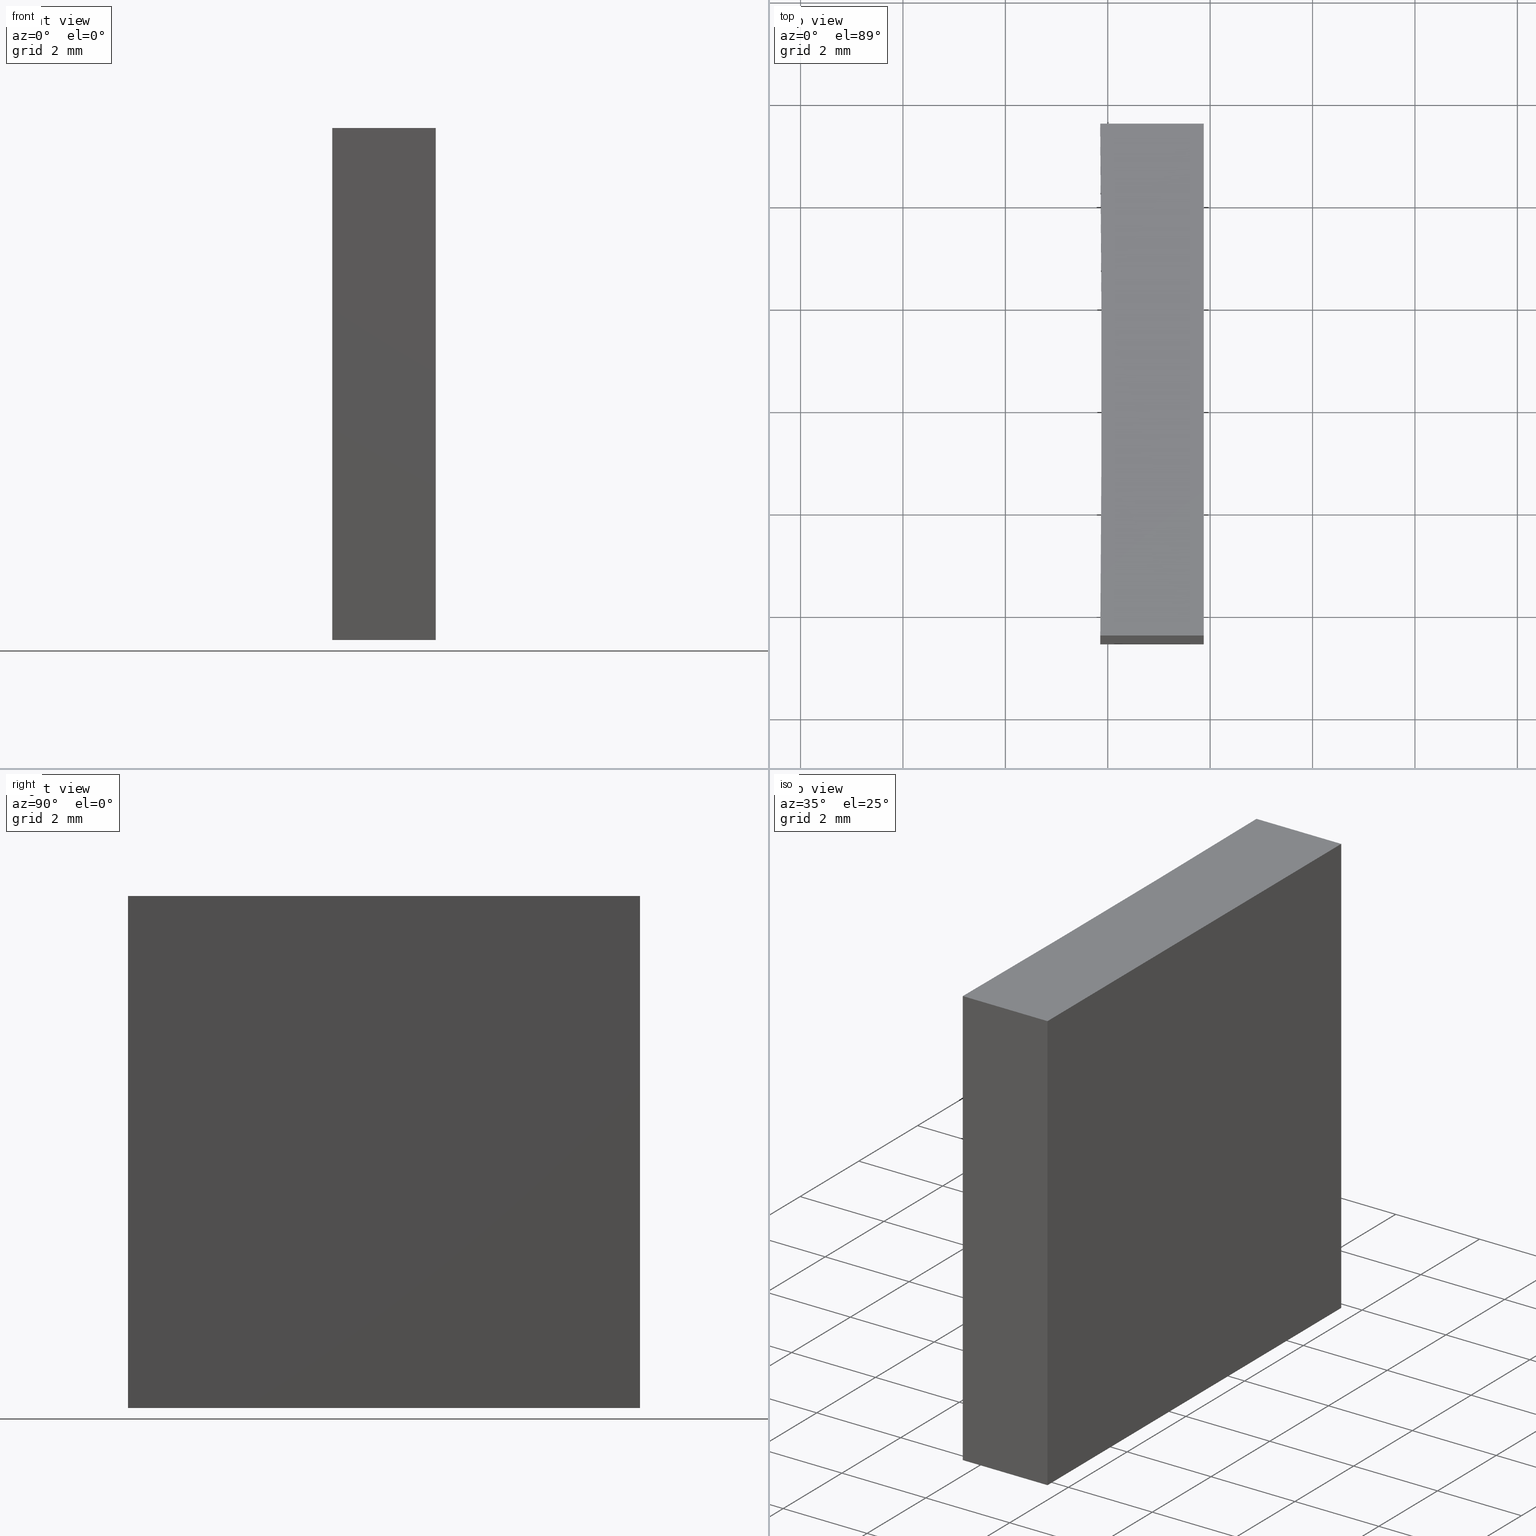
[diagram: canonical four-view strip — front | top / right | iso, engineering-drawing reading convention]
A machine part, canonical four-view strip (front | top / right | iso — engineering-drawing reading convention). The complete STEP part file that produces these views, byte-faithful:
ISO-10303-21;
HEADER;
FILE_DESCRIPTION (( 'STEP AP203' ),
    '1' );
FILE_NAME ('155574.STEP',
    '2024-05-13T06:31:25',
    ( '' ),
    ( '' ),
    'SwSTEP 2.0',
    'SolidWorks 2020',
    '' );
FILE_SCHEMA (( 'CONFIG_CONTROL_DESIGN' ));
ENDSEC;

DATA;
#1 = ORIENTED_EDGE ( 'NONE', *, *, #107, .T. ) ;
#2 = COORDINATED_UNIVERSAL_TIME_OFFSET ( 8, 0, .AHEAD. ) ;
#3 = CARTESIAN_POINT ( 'NONE',  ( 433.8743084995878121, -114.5310099826064487, 0.000000000000000000 ) ) ;
#4 = AXIS2_PLACEMENT_3D ( 'NONE', #60, #9, #141 ) ;
#5 = CARTESIAN_POINT ( 'NONE',  ( 431.8543084995877166, -124.5310099826064203, 10.00000000000000000 ) ) ;
#6 = LINE ( 'NONE', #158, #140 ) ;
#7 = DIRECTION ( 'NONE',  ( 1.000000000000000000, 0.000000000000000000, -0.000000000000000000 ) ) ;
#8 = CC_DESIGN_PERSON_AND_ORGANIZATION_ASSIGNMENT ( #12, #84, ( #187 ) ) ;
#9 = DIRECTION ( 'NONE',  ( 0.000000000000000000, 0.000000000000000000, 1.000000000000000000 ) ) ;
#10 = PERSON_AND_ORGANIZATION ( #155, #181 ) ;
#11 = ADVANCED_BREP_SHAPE_REPRESENTATION ( '155574', ( #198, #186 ), #151 ) ;
#12 = PERSON_AND_ORGANIZATION ( #155, #181 ) ;
#13 = CC_DESIGN_SECURITY_CLASSIFICATION ( #119, ( #136 ) ) ;
#14 = AXIS2_PLACEMENT_3D ( 'NONE', #81, #229, #123 ) ;
#15 = ADVANCED_FACE ( 'NONE', ( #76 ), #154, .F. ) ;
#16 = ORIENTED_EDGE ( 'NONE', *, *, #152, .T. ) ;
#17 = ADVANCED_FACE ( 'NONE', ( #209 ), #44, .F. ) ;
#18 = ORIENTED_EDGE ( 'NONE', *, *, #176, .F. ) ;
#19 = ORIENTED_EDGE ( 'NONE', *, *, #124, .T. ) ;
#20 = LINE ( 'NONE', #77, #131 ) ;
#21 = DIRECTION ( 'NONE',  ( -1.000000000000000000, 0.000000000000000000, 0.000000000000000000 ) ) ;
#22 = CARTESIAN_POINT ( 'NONE',  ( 431.8543084995877166, -114.5310099826064345, 10.00000000000000000 ) ) ;
#23 = DIRECTION ( 'NONE',  ( 0.000000000000000000, 0.000000000000000000, 1.000000000000000000 ) ) ;
#24 = PLANE ( 'NONE',  #146 ) ;
#25 = PERSON_AND_ORGANIZATION_ROLE ( 'design_supplier' ) ;
#26 = PERSON_AND_ORGANIZATION_ROLE ( 'design_owner' ) ;
#27 = DATE_TIME_ROLE ( 'classification_date' ) ;
#28 = APPROVAL_ROLE ( '' ) ;
#29 = AXIS2_PLACEMENT_3D ( 'NONE', #192, #23, #7 ) ;
#30 = CALENDAR_DATE ( 2024, 13, 5 ) ;
#31 = ORIENTED_EDGE ( 'NONE', *, *, #124, .F. ) ;
#32 = VECTOR ( 'NONE', #207, 1000.000000000000000 ) ;
#33 = EDGE_LOOP ( 'NONE', ( #183, #97, #130, #112 ) ) ;
#34 = EDGE_CURVE ( 'NONE', #116, #55, #138, .T. ) ;
#35 = ORIENTED_EDGE ( 'NONE', *, *, #220, .F. ) ;
#36 = ORIENTED_EDGE ( 'NONE', *, *, #220, .T. ) ;
#37 = ORIENTED_EDGE ( 'NONE', *, *, #91, .T. ) ;
#38 = DIRECTION ( 'NONE',  ( -1.000000000000000000, 6.870191984066299653E-15, -0.000000000000000000 ) ) ;
#39 = CC_DESIGN_PERSON_AND_ORGANIZATION_ASSIGNMENT ( #219, #26, ( #93 ) ) ;
#40 = FACE_OUTER_BOUND ( 'NONE', #185, .T. ) ;
#41 = CARTESIAN_POINT ( 'NONE',  ( 431.8543084995877166, -114.5310099826064345, 10.00000000000000000 ) ) ;
#42 = AXIS2_PLACEMENT_3D ( 'NONE', #225, #227, #79 ) ;
#43 = LINE ( 'NONE', #99, #127 ) ;
#44 = PLANE ( 'NONE',  #4 ) ;
#45 = PERSON_AND_ORGANIZATION ( #155, #181 ) ;
#46 = CARTESIAN_POINT ( 'NONE',  ( 431.8543084995877166, -114.5310099826064345, 10.00000000000000000 ) ) ;
#47 = CARTESIAN_POINT ( 'NONE',  ( 433.8743084995877553, -124.5310099826064203, 0.000000000000000000 ) ) ;
#48 = APPROVAL_STATUS ( 'not_yet_approved' ) ;
#49 = VECTOR ( 'NONE', #174, 1000.000000000000000 ) ;
#50 = APPROVAL ( #48, 'δָ��' ) ;
#51 = APPROVAL_ROLE ( '' ) ;
#52 = ORIENTED_EDGE ( 'NONE', *, *, #62, .F. ) ;
#53 = CC_DESIGN_APPROVAL ( #196, ( #187 ) ) ;
#54 = VECTOR ( 'NONE', #38, 1000.000000000000000 ) ;
#55 = VERTEX_POINT ( 'NONE', #211 ) ;
#56 = ORIENTED_EDGE ( 'NONE', *, *, #111, .T. ) ;
#57 = VERTEX_POINT ( 'NONE', #3 ) ;
#58 = DIRECTION ( 'NONE',  ( 1.000000000000000000, -6.870191984066300442E-15, 0.000000000000000000 ) ) ;
#59 = CC_DESIGN_PERSON_AND_ORGANIZATION_ASSIGNMENT ( #10, #67, ( #119 ) ) ;
#60 = CARTESIAN_POINT ( 'NONE',  ( -84.92150362787631934, -119.5310099826064345, 0.000000000000000000 ) ) ;
#61 = FACE_OUTER_BOUND ( 'NONE', #94, .T. ) ;
#62 = EDGE_CURVE ( 'NONE', #74, #116, #120, .T. ) ;
#63 = CARTESIAN_POINT ( 'NONE',  ( 431.8543084995877166, -124.5310099826064203, 10.00000000000000000 ) ) ;
#64 = VECTOR ( 'NONE', #143, 1000.000000000000000 ) ;
#65 = CARTESIAN_POINT ( 'NONE',  ( -84.92150362787631934, -119.5310099826064345, 10.00000000000000000 ) ) ;
#66 = MECHANICAL_CONTEXT ( 'NONE', #68, 'mechanical' ) ;
#67 = PERSON_AND_ORGANIZATION_ROLE ( 'classification_officer' ) ;
#68 = APPLICATION_CONTEXT ( 'configuration controlled 3d designs of mechanical parts and assemblies' ) ;
#69 = APPROVAL_STATUS ( 'not_yet_approved' ) ;
#70 = PERSON_AND_ORGANIZATION ( #155, #181 ) ;
#71 = PERSON_AND_ORGANIZATION ( #155, #181 ) ;
#72 = EDGE_LOOP ( 'NONE', ( #1, #35, #18, #167 ) ) ;
#73 = LOCAL_TIME ( 14, 31, 25.00000000000000000, #2 ) ;
#74 = VERTEX_POINT ( 'NONE', #22 ) ;
#75 = PRODUCT_RELATED_PRODUCT_CATEGORY ( 'detail', '', ( #93 ) ) ;
#76 = FACE_OUTER_BOUND ( 'NONE', #72, .T. ) ;
#77 = CARTESIAN_POINT ( 'NONE',  ( 433.8743084995878121, -114.5310099826064487, 10.00000000000000000 ) ) ;
#78 = DIRECTION ( 'NONE',  ( 5.551115123125792957E-15, 1.000000000000000000, -0.000000000000000000 ) ) ;
#79 = DIRECTION ( 'NONE',  ( 0.000000000000000000, -0.000000000000000000, 1.000000000000000000 ) ) ;
#80 = DIRECTION ( 'NONE',  ( 1.000000000000000000, 0.000000000000000000, 0.000000000000000000 ) ) ;
#81 = CARTESIAN_POINT ( 'NONE',  ( -84.92150362787631934, -119.5310099826064345, 0.000000000000000000 ) ) ;
#82 = DATE_TIME_ROLE ( 'creation_date' ) ;
#83 = APPROVAL ( #168, 'δָ��' ) ;
#84 = PERSON_AND_ORGANIZATION_ROLE ( 'creator' ) ;
#85 = DIRECTION ( 'NONE',  ( 0.000000000000000000, 0.000000000000000000, 1.000000000000000000 ) ) ;
#86 = CC_DESIGN_APPROVAL ( #50, ( #136 ) ) ;
#87 = CLOSED_SHELL ( 'NONE', ( #150, #15, #171, #134, #215, #17 ) ) ;
#88 = CALENDAR_DATE ( 2024, 13, 5 ) ;
#89 = UNCERTAINTY_MEASURE_WITH_UNIT (LENGTH_MEASURE( 1.000000000000000082E-05 ), #214, 'distance_accuracy_value', 'NONE');
#90 = CALENDAR_DATE ( 2024, 13, 5 ) ;
#91 = EDGE_CURVE ( 'NONE', #205, #74, #117, .T. ) ;
#92 = APPROVAL_PERSON_ORGANIZATION ( #70, #50, #103 ) ;
#93 = PRODUCT ( '155574', '155574', '', ( #66 ) ) ;
#94 = EDGE_LOOP ( 'NONE', ( #16, #135, #184, #223 ) ) ;
#95 = CC_DESIGN_APPROVAL ( #83, ( #119 ) ) ;
#96 = VECTOR ( 'NONE', #102, 1000.000000000000000 ) ;
#97 = ORIENTED_EDGE ( 'NONE', *, *, #152, .F. ) ;
#98 = EDGE_LOOP ( 'NONE', ( #169, #114, #31, #36 ) ) ;
#99 = CARTESIAN_POINT ( 'NONE',  ( 431.8543084995877166, -114.5310099826064345, 0.000000000000000000 ) ) ;
#100 = DIRECTION ( 'NONE',  ( -5.551115123125792168E-15, -1.000000000000000000, 0.000000000000000000 ) ) ;
#101 = CARTESIAN_POINT ( 'NONE',  ( 433.8743084995878121, -114.5310099826064487, 10.00000000000000000 ) ) ;
#102 = DIRECTION ( 'NONE',  ( 1.000000000000000000, 0.000000000000000000, 0.000000000000000000 ) ) ;
#103 = APPROVAL_ROLE ( '' ) ;
#104 = CC_DESIGN_DATE_AND_TIME_ASSIGNMENT ( #125, #82, ( #187 ) ) ;
#105 = CARTESIAN_POINT ( 'NONE',  ( 0.000000000000000000, 0.000000000000000000, 0.000000000000000000 ) ) ;
#106 = APPROVAL_DATE_TIME ( #197, #196 ) ;
#107 = EDGE_CURVE ( 'NONE', #55, #224, #190, .T. ) ;
#108 = VECTOR ( 'NONE', #188, 1000.000000000000000 ) ;
#109 = ORIENTED_EDGE ( 'NONE', *, *, #236, .T. ) ;
#110 = APPROVAL_PERSON_ORGANIZATION ( #148, #196, #28 ) ;
#111 = EDGE_CURVE ( 'NONE', #132, #55, #202, .T. ) ;
#112 = ORIENTED_EDGE ( 'NONE', *, *, #107, .F. ) ;
#113 = ORIENTED_EDGE ( 'NONE', *, *, #34, .F. ) ;
#114 = ORIENTED_EDGE ( 'NONE', *, *, #191, .F. ) ;
#115 = CALENDAR_DATE ( 2024, 13, 5 ) ;
#116 = VERTEX_POINT ( 'NONE', #5 ) ;
#117 = LINE ( 'NONE', #213, #54 ) ;
#118 = DIRECTION ( 'NONE',  ( -0.000000000000000000, -0.000000000000000000, -1.000000000000000000 ) ) ;
#119 = SECURITY_CLASSIFICATION ( '', '', #179 ) ;
#120 = CIRCLE ( 'NONE', #234, 516.8000000000000682 ) ;
#121 = DIRECTION ( 'NONE',  ( -1.000000000000000000, 5.551115123125792168E-15, 0.000000000000000000 ) ) ;
#122 = FACE_OUTER_BOUND ( 'NONE', #203, .T. ) ;
#123 = DIRECTION ( 'NONE',  ( 1.000000000000000000, 0.000000000000000000, 0.000000000000000000 ) ) ;
#124 = EDGE_CURVE ( 'NONE', #239, #205, #20, .T. ) ;
#125 = DATE_AND_TIME ( #88, #216 ) ;
#126 = CARTESIAN_POINT ( 'NONE',  ( 433.8743084995877553, -124.5310099826064203, 10.00000000000000000 ) ) ;
#127 = VECTOR ( 'NONE', #228, 1000.000000000000000 ) ;
#128 = COORDINATED_UNIVERSAL_TIME_OFFSET ( 8, 0, .AHEAD. ) ;
#129 = CC_DESIGN_PERSON_AND_ORGANIZATION_ASSIGNMENT ( #45, #25, ( #136 ) ) ;
#130 = ORIENTED_EDGE ( 'NONE', *, *, #231, .F. ) ;
#131 = VECTOR ( 'NONE', #78, 1000.000000000000000 ) ;
#132 = VERTEX_POINT ( 'NONE', #157 ) ;
#133 = APPROVAL_DATE_TIME ( #238, #83 ) ;
#134 = ADVANCED_FACE ( 'NONE', ( #61 ), #193, .F. ) ;
#135 = ORIENTED_EDGE ( 'NONE', *, *, #236, .F. ) ;
#136 = PRODUCT_DEFINITION_FORMATION_WITH_SPECIFIED_SOURCE ( '�κ�', '', #93, .NOT_KNOWN. ) ;
#137 = DIRECTION ( 'NONE',  ( -0.000000000000000000, -0.000000000000000000, -1.000000000000000000 ) ) ;
#138 = LINE ( 'NONE', #63, #49 ) ;
#139 = FACE_OUTER_BOUND ( 'NONE', #98, .T. ) ;
#140 = VECTOR ( 'NONE', #137, 1000.000000000000000 ) ;
#141 = DIRECTION ( 'NONE',  ( 1.000000000000000000, 0.000000000000000000, -0.000000000000000000 ) ) ;
#142 = DIRECTION ( 'NONE',  ( -6.870191984066300442E-15, -1.000000000000000000, 0.000000000000000000 ) ) ;
#143 = DIRECTION ( 'NONE',  ( -0.000000000000000000, -0.000000000000000000, -1.000000000000000000 ) ) ;
#144 = CALENDAR_DATE ( 2024, 13, 5 ) ;
#145 = LINE ( 'NONE', #46, #64 ) ;
#146 = AXIS2_PLACEMENT_3D ( 'NONE', #101, #121, #100 ) ;
#147 = APPLICATION_PROTOCOL_DEFINITION ( 'international standard', 'config_control_design', 1994, #170 ) ;
#148 = PERSON_AND_ORGANIZATION ( #155, #181 ) ;
#149 = DESIGN_CONTEXT ( 'detailed design', #170, 'design' ) ;
#150 = ADVANCED_FACE ( 'NONE', ( #40 ), #189, .F. ) ;
#151 =( GEOMETRIC_REPRESENTATION_CONTEXT ( 3 ) GLOBAL_UNCERTAINTY_ASSIGNED_CONTEXT ( ( #89 ) ) GLOBAL_UNIT_ASSIGNED_CONTEXT ( ( #214, #161, #232 ) ) REPRESENTATION_CONTEXT ( 'NONE', 'WORKASPACE' ) );
#152 = EDGE_CURVE ( 'NONE', #57, #132, #43, .T. ) ;
#153 = ORIENTED_EDGE ( 'NONE', *, *, #62, .T. ) ;
#154 = PLANE ( 'NONE',  #42 ) ;
#155 = PERSON ( 'δָ��', 'δָ��', 'δָ��', ('δָ��'), ('δָ��'), ('δָ��') ) ;
#156 = DIRECTION ( 'NONE',  ( -0.000000000000000000, -0.000000000000000000, -1.000000000000000000 ) ) ;
#157 = CARTESIAN_POINT ( 'NONE',  ( 431.8543084995877166, -114.5310099826064345, 0.000000000000000000 ) ) ;
#158 = CARTESIAN_POINT ( 'NONE',  ( 433.8743084995878121, -114.5310099826064487, 10.00000000000000000 ) ) ;
#159 = PLANE ( 'NONE',  #29 ) ;
#160 = CARTESIAN_POINT ( 'NONE',  ( 433.8743084995877553, -124.5310099826064203, 10.00000000000000000 ) ) ;
#161 =( NAMED_UNIT ( * ) PLANE_ANGLE_UNIT ( ) SI_UNIT ( $, .RADIAN. ) );
#162 = DIRECTION ( 'NONE',  ( 1.000000000000000000, 0.000000000000000000, 0.000000000000000000 ) ) ;
#163 = LOCAL_TIME ( 14, 31, 25.00000000000000000, #182 ) ;
#164 = DATE_AND_TIME ( #30, #217 ) ;
#165 = CC_DESIGN_DATE_AND_TIME_ASSIGNMENT ( #195, #27, ( #119 ) ) ;
#166 = SHAPE_DEFINITION_REPRESENTATION ( #212, #11 ) ;
#167 = ORIENTED_EDGE ( 'NONE', *, *, #34, .T. ) ;
#168 = APPROVAL_STATUS ( 'not_yet_approved' ) ;
#169 = ORIENTED_EDGE ( 'NONE', *, *, #231, .T. ) ;
#170 = APPLICATION_CONTEXT ( 'configuration controlled 3d designs of mechanical parts and assemblies' ) ;
#171 = ADVANCED_FACE ( 'NONE', ( #139 ), #24, .F. ) ;
#172 = CARTESIAN_POINT ( 'NONE',  ( -84.92150362787631934, -119.5310099826064345, 10.00000000000000000 ) ) ;
#173 = AXIS2_PLACEMENT_3D ( 'NONE', #65, #118, #21 ) ;
#174 = DIRECTION ( 'NONE',  ( -0.000000000000000000, -0.000000000000000000, -1.000000000000000000 ) ) ;
#175 = CARTESIAN_POINT ( 'NONE',  ( 431.8543084995877166, -124.5310099826064203, 10.00000000000000000 ) ) ;
#176 = EDGE_CURVE ( 'NONE', #116, #239, #177, .T. ) ;
#177 = LINE ( 'NONE', #175, #96 ) ;
#178 = LINE ( 'NONE', #160, #32 ) ;
#179 = SECURITY_CLASSIFICATION_LEVEL ( 'unclassified' ) ;
#180 = CARTESIAN_POINT ( 'NONE',  ( 433.8743084995878121, -114.5310099826064487, 0.000000000000000000 ) ) ;
#181 = ORGANIZATION ( 'δָ��', 'δָ��', '' ) ;
#182 = COORDINATED_UNIVERSAL_TIME_OFFSET ( 8, 0, .AHEAD. ) ;
#183 = ORIENTED_EDGE ( 'NONE', *, *, #111, .F. ) ;
#184 = ORIENTED_EDGE ( 'NONE', *, *, #91, .F. ) ;
#185 = EDGE_LOOP ( 'NONE', ( #56, #113, #52, #109 ) ) ;
#186 = AXIS2_PLACEMENT_3D ( 'NONE', #105, #85, #162 ) ;
#187 = PRODUCT_DEFINITION ( 'δ֪', '', #136, #149 ) ;
#188 = DIRECTION ( 'NONE',  ( 1.000000000000000000, 0.000000000000000000, 0.000000000000000000 ) ) ;
#189 = CYLINDRICAL_SURFACE ( 'NONE', #173, 516.8000000000000682 ) ;
#190 = LINE ( 'NONE', #208, #108 ) ;
#191 = EDGE_CURVE ( 'NONE', #205, #57, #6, .T. ) ;
#192 = CARTESIAN_POINT ( 'NONE',  ( -84.92150362787631934, -119.5310099826064345, 10.00000000000000000 ) ) ;
#193 = PLANE ( 'NONE',  #210 ) ;
#194 = PERSON_AND_ORGANIZATION_ROLE ( 'creator' ) ;
#195 = DATE_AND_TIME ( #144, #201 ) ;
#196 = APPROVAL ( #69, 'δָ��' ) ;
#197 = DATE_AND_TIME ( #90, #163 ) ;
#198 = MANIFOLD_SOLID_BREP ( '͹̨-����1', #87 ) ;
#199 = VECTOR ( 'NONE', #218, 1000.000000000000000 ) ;
#200 = LINE ( 'NONE', #180, #199 ) ;
#201 = LOCAL_TIME ( 14, 31, 25.00000000000000000, #233 ) ;
#202 = CIRCLE ( 'NONE', #14, 516.8000000000000682 ) ;
#203 = EDGE_LOOP ( 'NONE', ( #153, #204, #19, #37 ) ) ;
#204 = ORIENTED_EDGE ( 'NONE', *, *, #176, .T. ) ;
#205 = VERTEX_POINT ( 'NONE', #230 ) ;
#206 = CC_DESIGN_PERSON_AND_ORGANIZATION_ASSIGNMENT ( #71, #194, ( #136 ) ) ;
#207 = DIRECTION ( 'NONE',  ( -0.000000000000000000, -0.000000000000000000, -1.000000000000000000 ) ) ;
#208 = CARTESIAN_POINT ( 'NONE',  ( 431.8543084995877166, -124.5310099826064203, 0.000000000000000000 ) ) ;
#209 = FACE_OUTER_BOUND ( 'NONE', #33, .T. ) ;
#210 = AXIS2_PLACEMENT_3D ( 'NONE', #41, #142, #58 ) ;
#211 = CARTESIAN_POINT ( 'NONE',  ( 431.8543084995877166, -124.5310099826064203, 0.000000000000000000 ) ) ;
#212 = PRODUCT_DEFINITION_SHAPE ( 'NONE', 'NONE',  #187 ) ;
#213 = CARTESIAN_POINT ( 'NONE',  ( 431.8543084995877166, -114.5310099826064345, 10.00000000000000000 ) ) ;
#214 =( LENGTH_UNIT ( ) NAMED_UNIT ( * ) SI_UNIT ( .MILLI., .METRE. ) );
#215 = ADVANCED_FACE ( 'NONE', ( #122 ), #159, .T. ) ;
#216 = LOCAL_TIME ( 14, 31, 25.00000000000000000, #221 ) ;
#217 = LOCAL_TIME ( 14, 31, 25.00000000000000000, #128 ) ;
#218 = DIRECTION ( 'NONE',  ( 5.551115123125792957E-15, 1.000000000000000000, -0.000000000000000000 ) ) ;
#219 = PERSON_AND_ORGANIZATION ( #155, #181 ) ;
#220 = EDGE_CURVE ( 'NONE', #239, #224, #178, .T. ) ;
#221 = COORDINATED_UNIVERSAL_TIME_OFFSET ( 8, 0, .AHEAD. ) ;
#222 = PERSON_AND_ORGANIZATION ( #155, #181 ) ;
#223 = ORIENTED_EDGE ( 'NONE', *, *, #191, .T. ) ;
#224 = VERTEX_POINT ( 'NONE', #47 ) ;
#225 = CARTESIAN_POINT ( 'NONE',  ( 431.8543084995877166, -124.5310099826064203, 10.00000000000000000 ) ) ;
#226 = APPROVAL_PERSON_ORGANIZATION ( #222, #83, #51 ) ;
#227 = DIRECTION ( 'NONE',  ( 0.000000000000000000, 1.000000000000000000, 0.000000000000000000 ) ) ;
#228 = DIRECTION ( 'NONE',  ( -1.000000000000000000, 6.870191984066299653E-15, -0.000000000000000000 ) ) ;
#229 = DIRECTION ( 'NONE',  ( -0.000000000000000000, -0.000000000000000000, -1.000000000000000000 ) ) ;
#230 = CARTESIAN_POINT ( 'NONE',  ( 433.8743084995878121, -114.5310099826064487, 10.00000000000000000 ) ) ;
#231 = EDGE_CURVE ( 'NONE', #224, #57, #200, .T. ) ;
#232 =( NAMED_UNIT ( * ) SI_UNIT ( $, .STERADIAN. ) SOLID_ANGLE_UNIT ( ) );
#233 = COORDINATED_UNIVERSAL_TIME_OFFSET ( 8, 0, .AHEAD. ) ;
#234 = AXIS2_PLACEMENT_3D ( 'NONE', #172, #156, #80 ) ;
#235 = APPLICATION_PROTOCOL_DEFINITION ( 'international standard', 'config_control_design', 1994, #68 ) ;
#236 = EDGE_CURVE ( 'NONE', #74, #132, #145, .T. ) ;
#237 = APPROVAL_DATE_TIME ( #164, #50 ) ;
#238 = DATE_AND_TIME ( #115, #73 ) ;
#239 = VERTEX_POINT ( 'NONE', #126 ) ;
ENDSEC;
END-ISO-10303-21;
